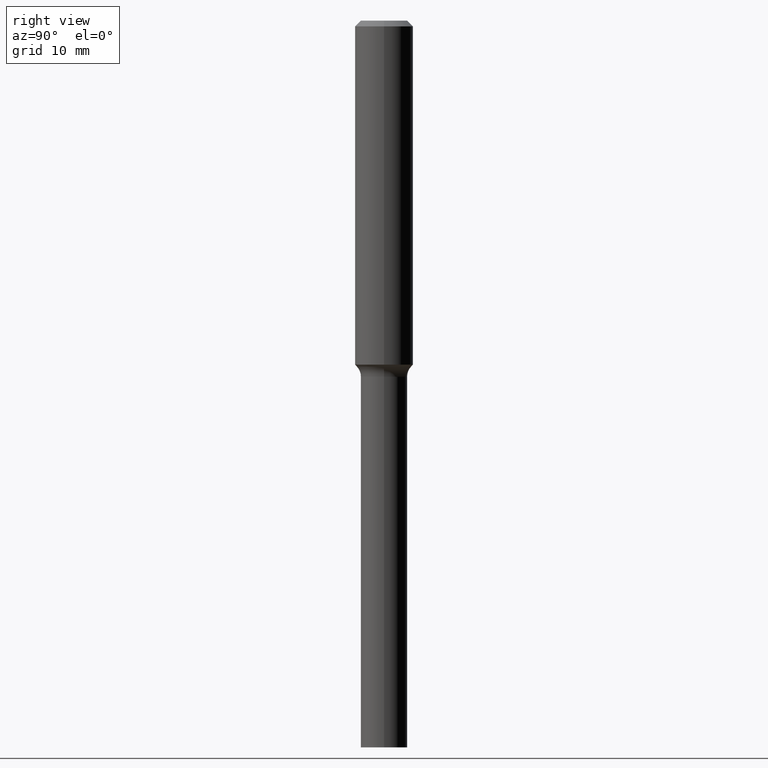
[diagram: clean part render]
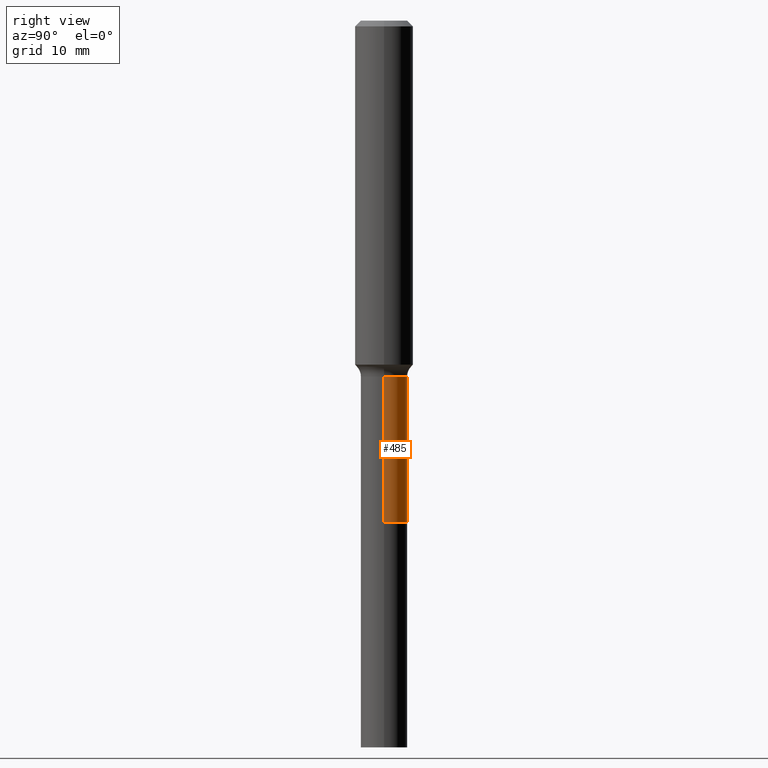
[diagram: same view with one face highlighted and labeled with its STEP entity id]
A machine part, right view. The second image highlights one B-rep face of the part: STEP entity #485.
In plain terms, the highlighted cylindrical surface (edge-blend (fillet) strip) has radius 3.2004 mm, axis along (-0, 0, 1).
Its self-contained STEP definition (entity closure, byte-faithful):
#31 = VERTEX_POINT ( 'NONE', #510 ) ;
#36 = CYLINDRICAL_SURFACE ( 'NONE', #237, 0.1259999999999999454 ) ;
#60 = CARTESIAN_POINT ( 'NONE',  ( 0.1259999999999999454, -8.798532973884691559E-16, 6.143982737502876745E-30 ) ) ;
#66 = VECTOR ( 'NONE', #181, 39.37007874015748143 ) ;
#73 = CIRCLE ( 'NONE', #368, 0.1260000000000000009 ) ;
#78 = DIRECTION ( 'NONE',  ( -2.445468806185136877E-29, 3.491481338843145188E-15, 1.000000000000000000 ) ) ;
#93 = CARTESIAN_POINT ( 'NONE',  ( 0.1260000000000000009, -1.036446235435587453E-14, -2.716499999999999915 ) ) ;
#130 = CARTESIAN_POINT ( 'NONE',  ( 6.643116012001922516E-29, -9.484609056967403598E-15, -2.716499999999999915 ) ) ;
#159 = AXIS2_PLACEMENT_3D ( 'NONE', #370, #174, #450 ) ;
#168 = DIRECTION ( 'NONE',  ( -2.445468806185136597E-29, 3.491481338843145583E-15, 1.000000000000000000 ) ) ;
#174 = DIRECTION ( 'NONE',  ( -2.445468806185136597E-29, 3.491481338843145583E-15, 1.000000000000000000 ) ) ;
#179 = VERTEX_POINT ( 'NONE', #93 ) ;
#181 = DIRECTION ( 'NONE',  ( -2.445468806185136877E-29, 3.491481338843145188E-15, 1.000000000000000000 ) ) ;
#201 = EDGE_CURVE ( 'NONE', #226, #31, #307, .T. ) ;
#213 = ORIENTED_EDGE ( 'NONE', *, *, #309, .T. ) ;
#226 = VERTEX_POINT ( 'NONE', #328 ) ;
#237 = AXIS2_PLACEMENT_3D ( 'NONE', #474, #357, #435 ) ;
#260 = ORIENTED_EDGE ( 'NONE', *, *, #455, .F. ) ;
#277 = LINE ( 'NONE', #441, #387 ) ;
#287 = DIRECTION ( 'NONE',  ( 1.000000000000000000, -6.982962677686270655E-15, 0.000000000000000000 ) ) ;
#300 = VERTEX_POINT ( 'NONE', #478 ) ;
#307 = CIRCLE ( 'NONE', #159, 0.1259999999999998899 ) ;
#309 = EDGE_CURVE ( 'NONE', #300, #31, #277, .T. ) ;
#328 = CARTESIAN_POINT ( 'NONE',  ( 0.1259999999999998899, -7.614920800016896756E-15, -1.929000000000000048 ) ) ;
#348 = EDGE_CURVE ( 'NONE', #179, #300, #73, .T. ) ;
#357 = DIRECTION ( 'NONE',  ( -2.445468806185136597E-29, 3.491481338843145583E-15, 1.000000000000000000 ) ) ;
#368 = AXIS2_PLACEMENT_3D ( 'NONE', #130, #168, #287 ) ;
#370 = CARTESIAN_POINT ( 'NONE',  ( 4.717309327131129015E-29, -6.735067502628427403E-15, -1.929000000000000048 ) ) ;
#385 = LINE ( 'NONE', #60, #66 ) ;
#387 = VECTOR ( 'NONE', #78, 39.37007874015748143 ) ;
#395 = FACE_OUTER_BOUND ( 'NONE', #436, .T. ) ;
#407 = ORIENTED_EDGE ( 'NONE', *, *, #348, .T. ) ;
#435 = DIRECTION ( 'NONE',  ( 1.000000000000000000, -6.982962677686265922E-15, 4.876176775795935793E-29 ) ) ;
#436 = EDGE_LOOP ( 'NONE', ( #407, #213, #516, #260 ) ) ;
#441 = CARTESIAN_POINT ( 'NONE',  ( -0.1259999999999999454, 8.952838470577258461E-16, -6.197858213721179206E-30 ) ) ;
#450 = DIRECTION ( 'NONE',  ( 1.000000000000000000, -6.982962677686269077E-15, 0.000000000000000000 ) ) ;
#455 = EDGE_CURVE ( 'NONE', #179, #226, #385, .T. ) ;
#474 = CARTESIAN_POINT ( 'NONE',  ( 0.000000000000000000, 0.000000000000000000, 0.000000000000000000 ) ) ;
#478 = CARTESIAN_POINT ( 'NONE',  ( -0.1260000000000000009, -7.214554432740189260E-15, -2.716499999999999915 ) ) ;
#485 = ADVANCED_FACE ( 'NONE', ( #395 ), #36, .T. ) ;
#510 = CARTESIAN_POINT ( 'NONE',  ( -0.1259999999999998899, -7.214554432740190838E-15, -1.929000000000000048 ) ) ;
#516 = ORIENTED_EDGE ( 'NONE', *, *, #201, .F. ) ;